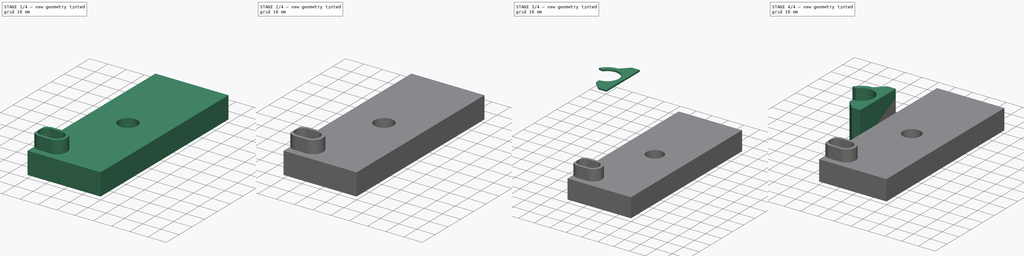
[diagram: build sequence overview — one tinted view per stage of 4, left to right]
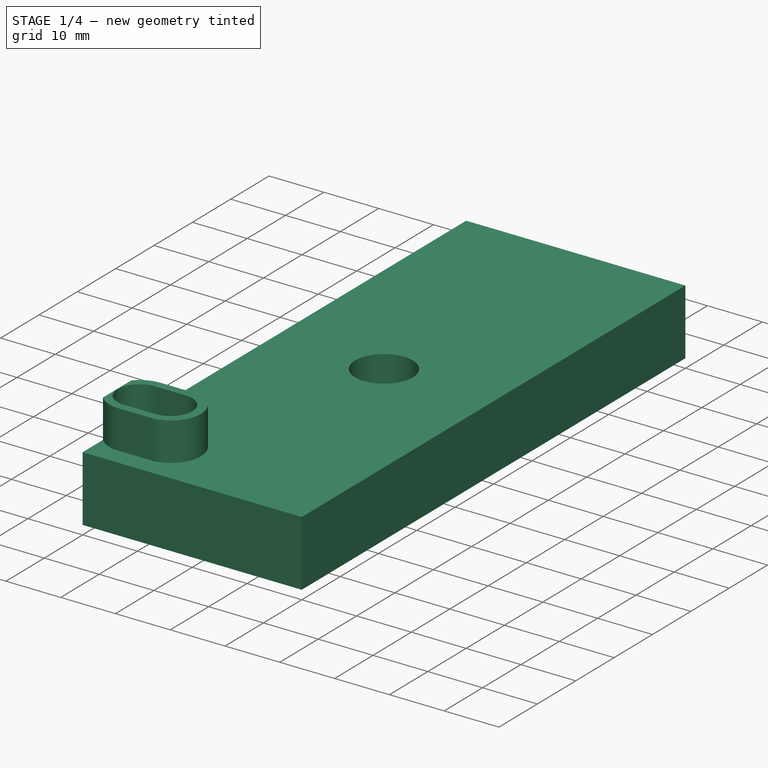
[diagram: stage 1 of 4 — iso view after this stage's code; geometry added in this stage tinted green]
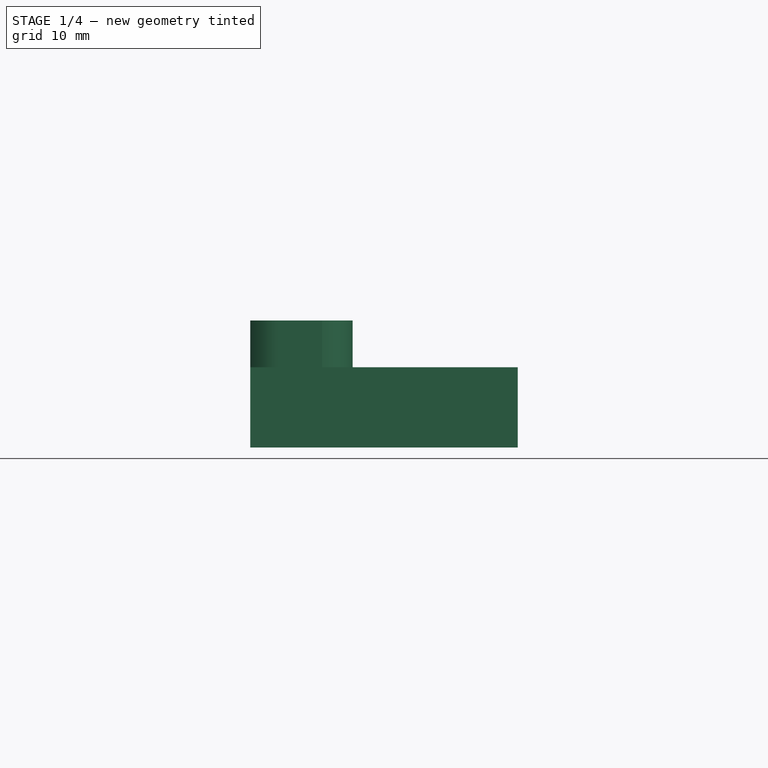
[diagram: stage 1 of 4 — front view after this stage's code; geometry added in this stage tinted green]
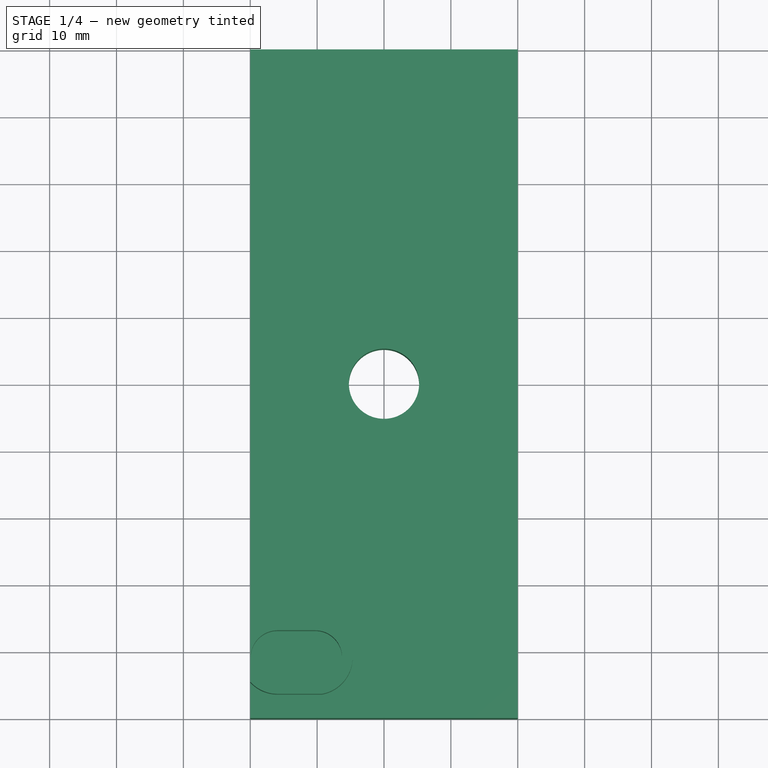
[diagram: stage 1 of 4 — top view after this stage's code; geometry added in this stage tinted green]
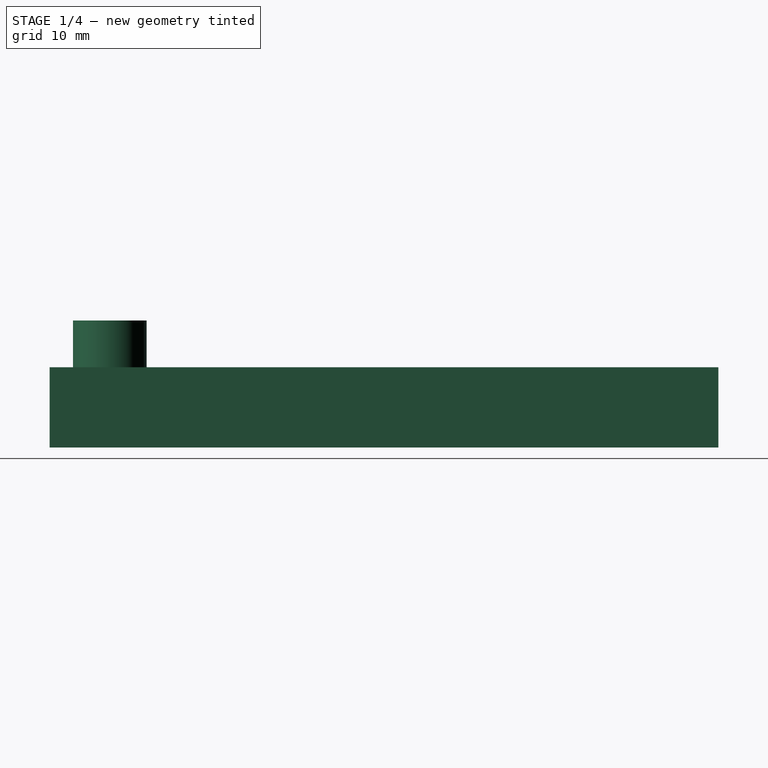
[diagram: stage 1 of 4 — right view after this stage's code; geometry added in this stage tinted green]
FCSTD DOCUMENT  (FreeCAD 0.15R4671 (Git))
Label: LShoulderV6
License: All rights reserved
LicenseURL: http://en.wikipedia.org/wiki/All_rights_reserved
objects: Sketcher::SketchObject×11, PartDesign::Pad×6, PartDesign::Pocket×5, Part::MultiFuse×1
note: 34 computed .brp shape members not serialized (recipe doc carries the construction recipe); baked Part::Feature solids carry a one-line shape summary decoded from their .brp

FEATURE [Sketcher::SketchObject] Sketch  label="Base001"
  sketch-geometry (7):
    g0: Circle CenterX=30 CenterY=0 CenterZ=0 NormalX=0 NormalY=0 NormalZ=1 Radius=5.25
    g1: LineSegment StartX=50 StartY=-50 StartZ=0 EndX=50 EndY=50 EndZ=0
    g2: LineSegment StartX=10 StartY=20 StartZ=0 EndX=10 EndY=50 EndZ=0
    g3: LineSegment StartX=10 StartY=50 StartZ=0 EndX=50 EndY=50 EndZ=0
    g4: LineSegment StartX=10 StartY=-13.3852 StartZ=0 EndX=10 EndY=-50 EndZ=0
    g5: LineSegment StartX=10 StartY=-50 StartZ=0 EndX=50 EndY=-50 EndZ=0
    g6: LineSegment StartX=10 StartY=-13.3852 StartZ=0 EndX=10 EndY=20 EndZ=0
  constraints (14):
    c: Radius(g0) = 5.25
    c: DistanceX(g-1,g0) = 30
    c: Vertical(g1)
    c: DistanceY(g1,g1) = -100
    c: Vertical(g2)
    c: Coincident(g3,g1)
    c: Horizontal(g3)
    c: Vertical(g4)
    c: Coincident(g5,g4)
    c: Coincident(g5,g1)
    c: Horizontal(g5)
    c: Vertical(g6)
    c: Coincident(g2,g6)
    c: Coincident(g6,g4)
FEATURE [PartDesign::Pad] Pad  label="Base"
  Length = 12
  Length2 = 100
  Sketch = -> Sketch
  Type = 0
FEATURE [Sketcher::SketchObject] Sketch016  label="Base009"
  sketch-geometry (7):
    g0: Circle CenterX=30 CenterY=0 CenterZ=0 NormalX=0 NormalY=0 NormalZ=1 Radius=5.25
    g1: LineSegment StartX=50 StartY=-50 StartZ=0 EndX=50 EndY=50 EndZ=0
    g2: LineSegment StartX=10 StartY=20 StartZ=0 EndX=10 EndY=50 EndZ=0
    g3: LineSegment StartX=10 StartY=50 StartZ=0 EndX=50 EndY=50 EndZ=0
    g4: LineSegment StartX=10 StartY=-13.3852 StartZ=0 EndX=10 EndY=-50 EndZ=0
    g5: LineSegment StartX=10 StartY=-50 StartZ=0 EndX=50 EndY=-50 EndZ=0
    g6: LineSegment StartX=10 StartY=-13.3852 StartZ=0 EndX=10 EndY=20 EndZ=0
  constraints (14):
    c: Radius(g0) = 5.25
    c: DistanceX(g-1,g0) = 30
    c: Vertical(g1)
    c: DistanceY(g1,g1) = -100
    c: Vertical(g2)
    c: Coincident(g3,g1)
    c: Horizontal(g3)
    c: Vertical(g4)
    c: Coincident(g5,g4)
    c: Coincident(g5,g1)
    c: Horizontal(g5)
    c: Vertical(g6)
    c: Coincident(g2,g6)
    c: Coincident(g6,g4)
FEATURE [PartDesign::Pad] Pad004  label="Base010"
  Length = 12
  Length2 = 100
  Sketch = -> Sketch016
  Type = 0
FEATURE [Sketcher::SketchObject] Sketch022
  Placement = pos=(0,0,12) rot=(0,0,1;0rad)
  sketch-geometry (10):
    g0: ArcOfCircle CenterX=19.728 CenterY=-41 CenterZ=0 NormalX=0 NormalY=0 NormalZ=1 Radius=4 StartAngle=4.71239 EndAngle=7.85398
    g1: ArcOfCircle CenterX=14.078 CenterY=-41 CenterZ=0 NormalX=0 NormalY=0 NormalZ=1 Radius=4 StartAngle=1.5708 EndAngle=4.71239
    g2: LineSegment StartX=14.078 StartY=-37 StartZ=0 EndX=19.728 EndY=-37 EndZ=0
    g3: LineSegment StartX=19.728 StartY=-45 StartZ=0 EndX=14.078 EndY=-45 EndZ=0
    g4: ArcOfCircle CenterX=19.728 CenterY=-41 CenterZ=0 NormalX=0 NormalY=0 NormalZ=1 Radius=5.58914 StartAngle=4.89122 EndAngle=7.67515
    g5: ArcOfCircle CenterX=14.078 CenterY=-41 CenterZ=0 NormalX=0 NormalY=0 NormalZ=1 Radius=5.5 StartAngle=1.5708 EndAngle=2.40604
    g6: ArcOfCircle CenterX=14.078 CenterY=-41 CenterZ=0 NormalX=0 NormalY=0 NormalZ=1 Radius=5.5 StartAngle=3.87715 EndAngle=4.71239
    g7: LineSegment StartX=20.7222 StartY=-35.5 StartZ=0 EndX=14.078 EndY=-35.5 EndZ=0
    g8: LineSegment StartX=20.7222 StartY=-46.5 StartZ=0 EndX=14.078 EndY=-46.5 EndZ=0
    g9: LineSegment StartX=10 StartY=-37.3095 StartZ=0 EndX=10 EndY=-44.6905 EndZ=0
  constraints (30):
    c: Coincident(g2,g1)
    c: Coincident(g2,g0)
    c: Coincident(g3,g0)
    c: Coincident(g3,g1)
    c: Tangent(g1,g3)
    c: Tangent(g2,g1)
    c: Tangent(g0,g2)
    c: Tangent(g0,g3)
    c: Horizontal(g2)
    c: Horizontal(g3)
    c: DistanceY(g-1,g1) = -41
    c: DistanceX(g1,g0) = 5.65
    c: Radius(g1) = 4
    c: DistanceY(g4,g4) = 11
    c: Coincident(g7,g4)
    c: Coincident(g7,g5)
    c: Horizontal(g7)
    c: Coincident(g8,g4)
    c: Coincident(g8,g6)
    c: Horizontal(g8)
    c: Coincident(g9,g5)
    c: Vertical(g9)
    c: Coincident(g6,g9)
    c: DistanceX(g-1,g6) = 10
    c: DistanceX(g4,g4) = 0
    c: Tangent(g7,g5)
    c: Tangent(g8,g6)
    c: Coincident(g4,g0)
    c: Coincident(g6,g1)
    c: Coincident(g5,g1)
FEATURE [PartDesign::Pad] Pad006
  Length = 7
  Length2 = 100
  Placement = pos=(0,0,12) rot=(0,0,1;0rad)
  Sketch = -> Sketch022
  Type = 0
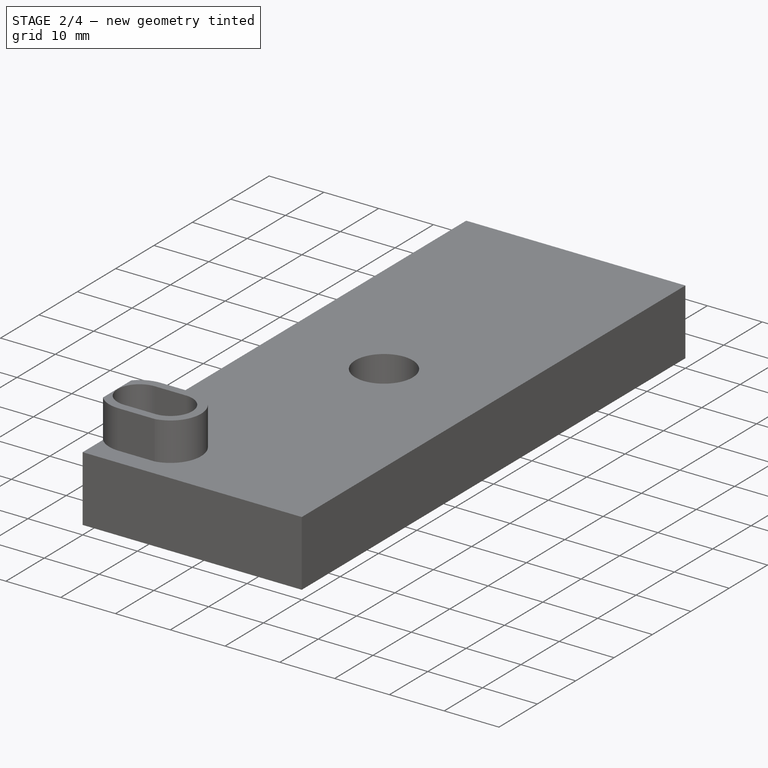
[diagram: stage 2 of 4 — iso view after this stage's code; geometry added in this stage tinted green]
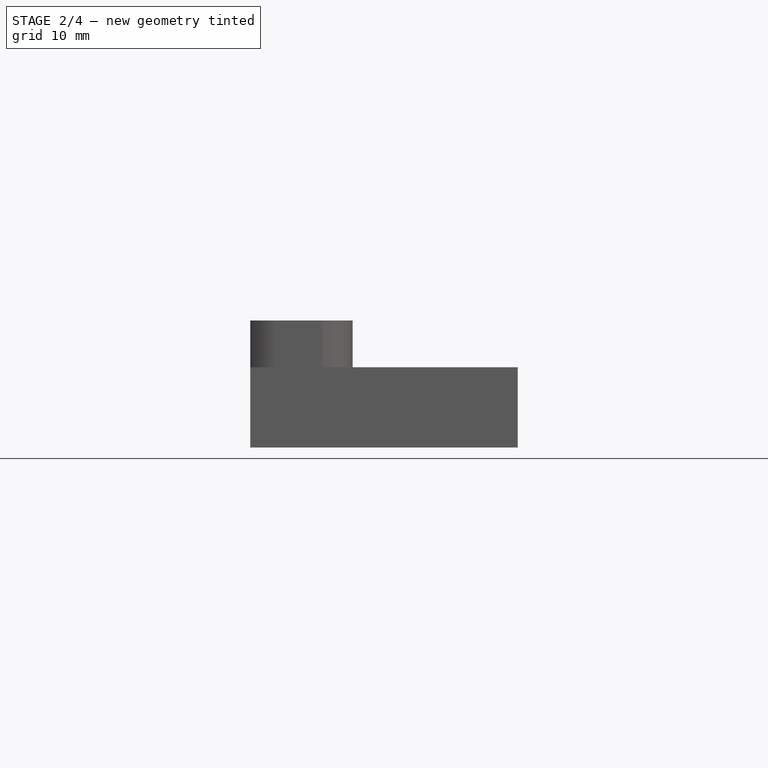
[diagram: stage 2 of 4 — front view after this stage's code; geometry added in this stage tinted green]
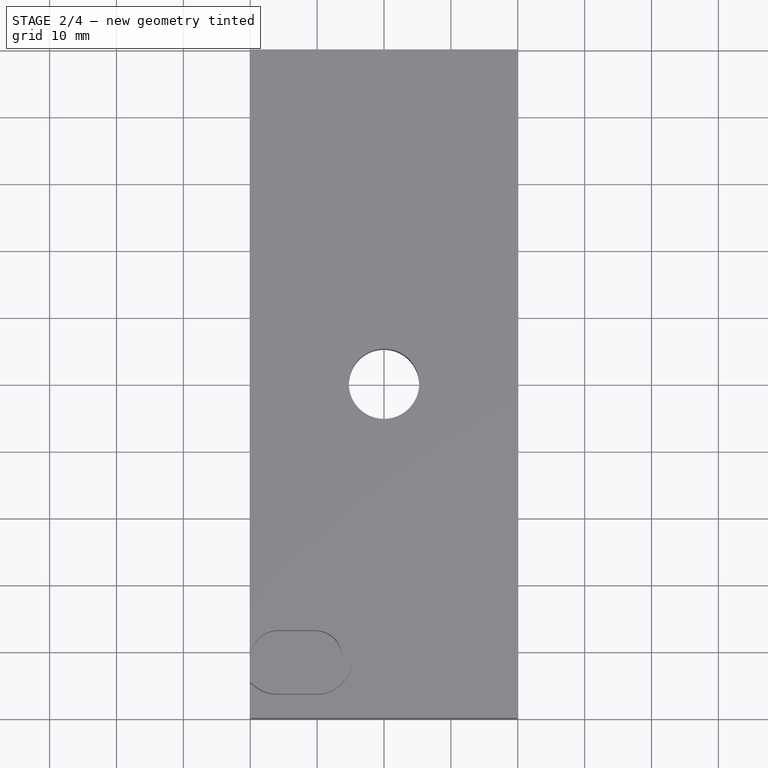
[diagram: stage 2 of 4 — top view after this stage's code; geometry added in this stage tinted green]
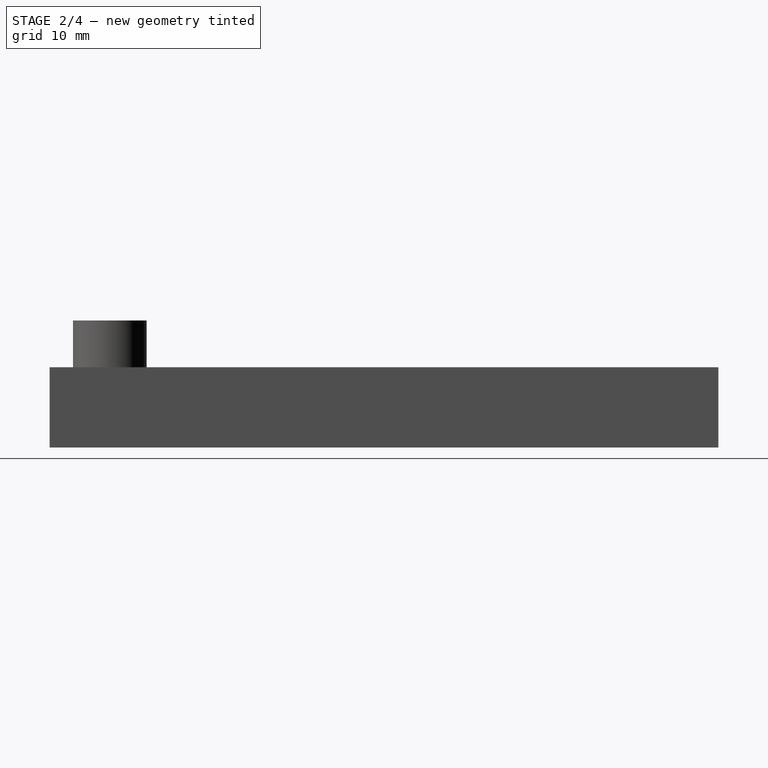
[diagram: stage 2 of 4 — right view after this stage's code; geometry added in this stage tinted green]
FEATURE [Sketcher::SketchObject] Sketch005  label="NutScrewHoles001"
  Placement = pos=(0,0,12) rot=(0,0,1;0rad)
  Support = -> Pad [Face9]
  sketch-geometry (4):
    g0: Circle CenterX=29.9972 CenterY=8.25 CenterZ=0 NormalX=0 NormalY=0 NormalZ=1 Radius=1
    g1: Circle CenterX=21.7472 CenterY=0 CenterZ=0 NormalX=0 NormalY=0 NormalZ=1 Radius=1
    g2: Circle CenterX=38.2471 CenterY=0 CenterZ=0 NormalX=0 NormalY=0 NormalZ=1 Radius=1
    g3: Circle CenterX=29.9972 CenterY=-8.25 CenterZ=0 NormalX=0 NormalY=0 NormalZ=1 Radius=1
  constraints (11):
    c: PointOnObject(g1,g-1)
    c: Radius(g3) = 1
    c: Equal(g3,g2)
    c: Equal(g3,g0)
    c: Equal(g3,g1)
    c: PointOnObject(g2,g-1)
    c: DistanceX(g3,g0) = 0
    c: DistanceY(g3,g0) = 16.5
    c: DistanceX(g1,g2) = 16.5
    c: DistanceY(g0,g2) = -8.25
    c: DistanceX(g2,g0) = -8.25
FEATURE [PartDesign::Pocket] Pocket
  Length = 15
  Sketch = -> Sketch005
  Type = 0
FEATURE [Sketcher::SketchObject] Sketch001  label="HorizontalRods"
  Placement = pos=(50,0,0) rot=(0.57735,0.57735,0.57735;2.0944rad)
  Support = -> Pocket [Face7]
  sketch-geometry (8):
    g0: LineSegment StartX=-33.5116 StartY=1.26626 StartZ=0 EndX=-33.5116 EndY=0 EndZ=0
    g1: LineSegment StartX=-33.5116 StartY=0 StartZ=0 EndX=-36.5116 EndY=0 EndZ=0
    g2: LineSegment StartX=-36.5116 StartY=0 StartZ=0 EndX=-36.5116 EndY=1.27538 EndZ=0
    g3: LineSegment StartX=36.5 StartY=1.18424 StartZ=0 EndX=36.5 EndY=0 EndZ=0
    g4: LineSegment StartX=36.5 StartY=0 StartZ=0 EndX=33.5 EndY=0 EndZ=0
    g5: LineSegment StartX=33.5 StartY=0 StartZ=0 EndX=33.5 EndY=1.18424 EndZ=0
    g6: ArcOfCircle CenterX=35 CenterY=5 CenterZ=0 NormalX=0 NormalY=0 NormalZ=1 Radius=4.1 StartAngle=5.08694 EndAngle=10.621
    g7: ArcOfCircle CenterX=-35 CenterY=5.08655 CenterZ=0 NormalX=0 NormalY=0 NormalZ=1 Radius=4.1 StartAngle=5.0839 EndAngle=10.618
  constraints (18):
    c: Coincident(g0,g1)
    c: Coincident(g1,g2)
    c: Horizontal(g1)
    c: Vertical(g0)
    c: Vertical(g2)
    c: DistanceX(g0,g2) = -3
    c: Coincident(g3,g4)
    c: Coincident(g4,g5)
    c: Horizontal(g4)
    c: Vertical(g3)
    c: Vertical(g5)
    c: DistanceX(g5,g3) = 3
    c: Coincident(g6,g3)
    c: Coincident(g6,g5)
    c: Coincident(g7,g0)
    c: Coincident(g7,g2)
    c: Radius(g7) = 4.1
    c: Radius(g6) = 4.1
FEATURE [PartDesign::Pocket] Pocket001
  Length = 25
  Sketch = -> Sketch001
  Type = 0
FEATURE [PartDesign::Pocket] Pocket002
  Length = 5
  Sketch = -> Sketch012
  Type = 0
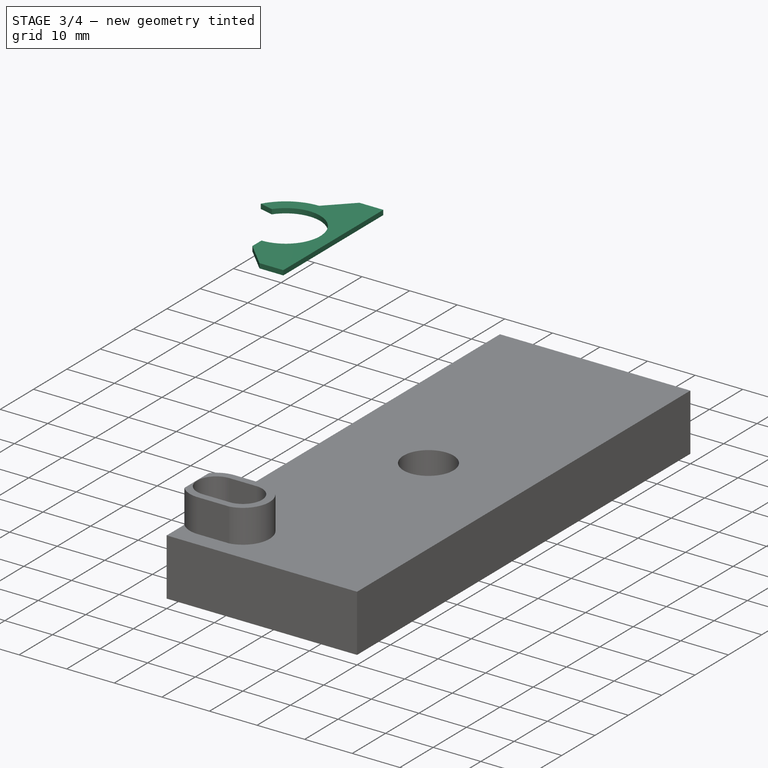
[diagram: stage 3 of 4 — iso view after this stage's code; geometry added in this stage tinted green]
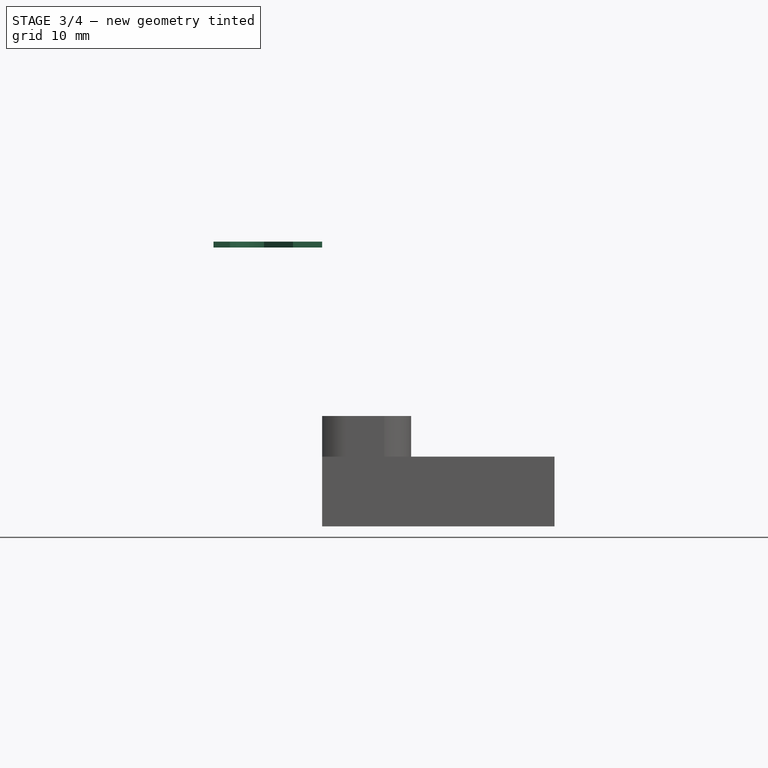
[diagram: stage 3 of 4 — front view after this stage's code; geometry added in this stage tinted green]
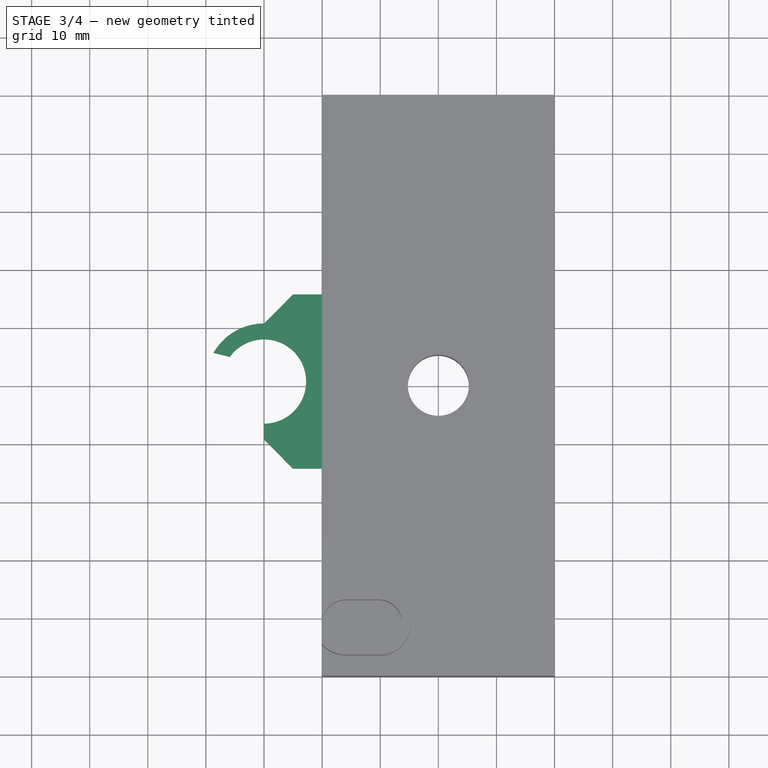
[diagram: stage 3 of 4 — top view after this stage's code; geometry added in this stage tinted green]
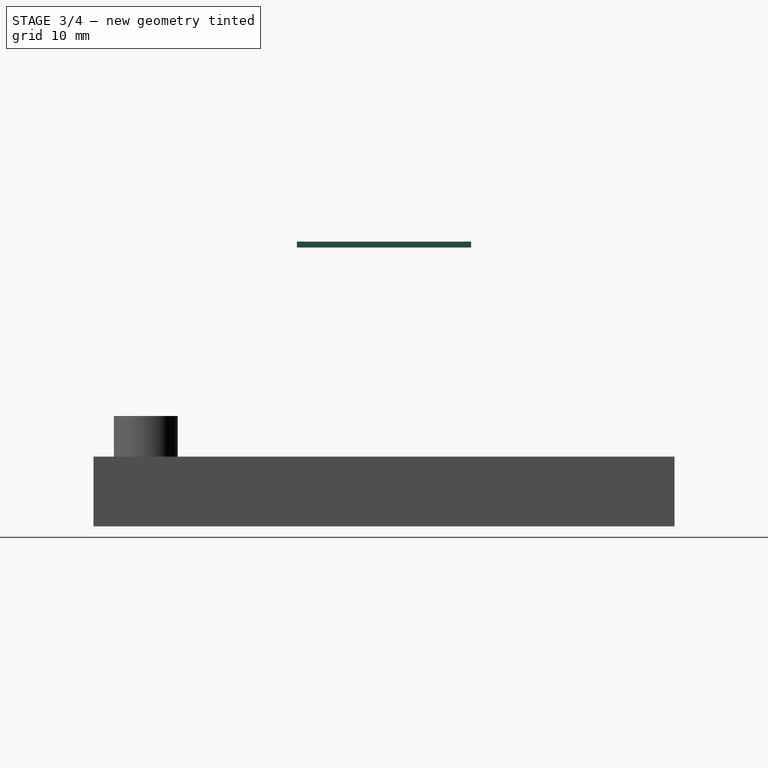
[diagram: stage 3 of 4 — right view after this stage's code; geometry added in this stage tinted green]
FEATURE [PartDesign::Pad] Pad003
  Length = 1
  Length2 = 100
  Placement = pos=(0,0,48) rot=(0,0,1;0rad)
  Sketch = -> Sketch015
  Type = 0
FEATURE [Sketcher::SketchObject] Sketch011  label="Pulley001"
  Placement = pos=(0,0,12) rot=(0,0,1;0rad)
  Support = -> Pocket002 [Face8]
  sketch-geometry (4):
    g0: LineSegment StartX=14.4154 StartY=-44.9825 StartZ=0 EndX=20.1963 EndY=-44.9825 EndZ=0
    g1: LineSegment StartX=14.0494 StartY=-37 StartZ=0 EndX=20.2124 EndY=-37 EndZ=0
    g2: ArcOfCircle CenterX=14.0416 CenterY=-41 CenterZ=0 NormalX=0 NormalY=0 NormalZ=1 Radius=4 StartAngle=1.56885 EndAngle=4.80596
    g3: ArcOfCircle CenterX=19.94 CenterY=-40.9907 CenterZ=0 NormalX=0 NormalY=0 NormalZ=1 Radius=4 StartAngle=4.77651 EndAngle=7.78583
  constraints (9):
    c: Horizontal(g1)
    c: Coincident(g3,g0)
    c: Coincident(g3,g1)
    c: Coincident(g1,g2)
    c: Coincident(g0,g2)
    c: Equal(g3,g2)
    c: Radius(g3) = 4
    c: DistanceY(g-1,g2) = -41
    c: Horizontal(g0)
FEATURE [PartDesign::Pocket] Pocket003
  Length = 12
  Sketch = -> Sketch011
  Type = 0
FEATURE [Sketcher::SketchObject] Sketch010
  Placement = pos=(0,0,12) rot=(0,0,1;0rad)
  Support = -> Pocket003 [Face8]
  sketch-geometry (2):
    g0: Circle CenterX=43 CenterY=19.1111 CenterZ=0 NormalX=0 NormalY=0 NormalZ=1 Radius=1.1
    g1: Circle CenterX=43 CenterY=10.1111 CenterZ=0 NormalX=0 NormalY=0 NormalZ=1 Radius=1.1
  constraints (5):
    c: Radius(g1) = 1.1
    c: Equal(g1,g0)
    c: DistanceY(g0,g1) = -9
    c: DistanceX(g0,g1) = 0
    c: DistanceX(g-1,g0) = 43
FEATURE [PartDesign::Pocket] Pocket004
  Length = 12
  Sketch = -> Sketch010
  Type = 0
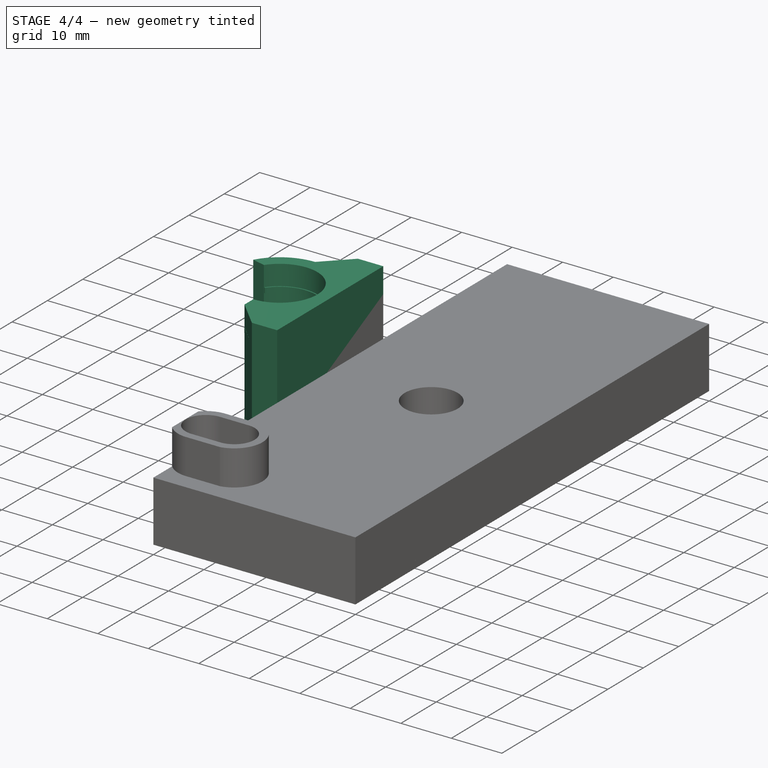
[diagram: stage 4 of 4 — iso view after this stage's code; geometry added in this stage tinted green]
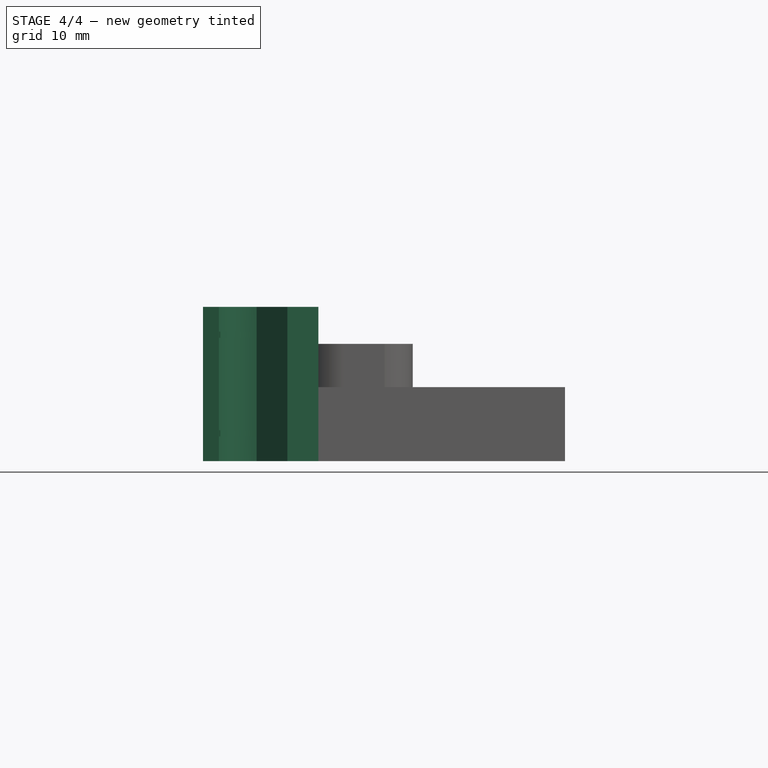
[diagram: stage 4 of 4 — front view after this stage's code; geometry added in this stage tinted green]
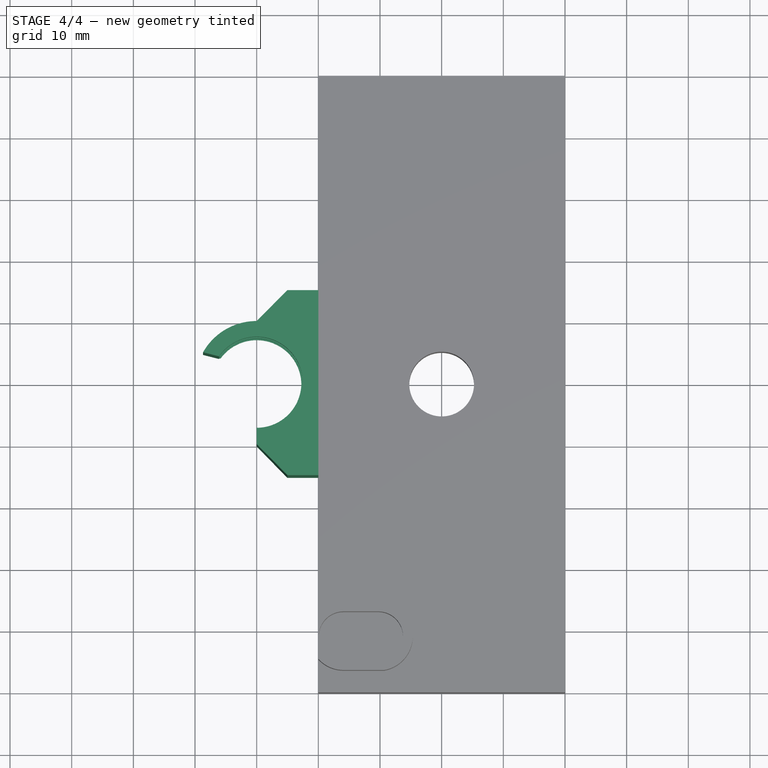
[diagram: stage 4 of 4 — top view after this stage's code; geometry added in this stage tinted green]
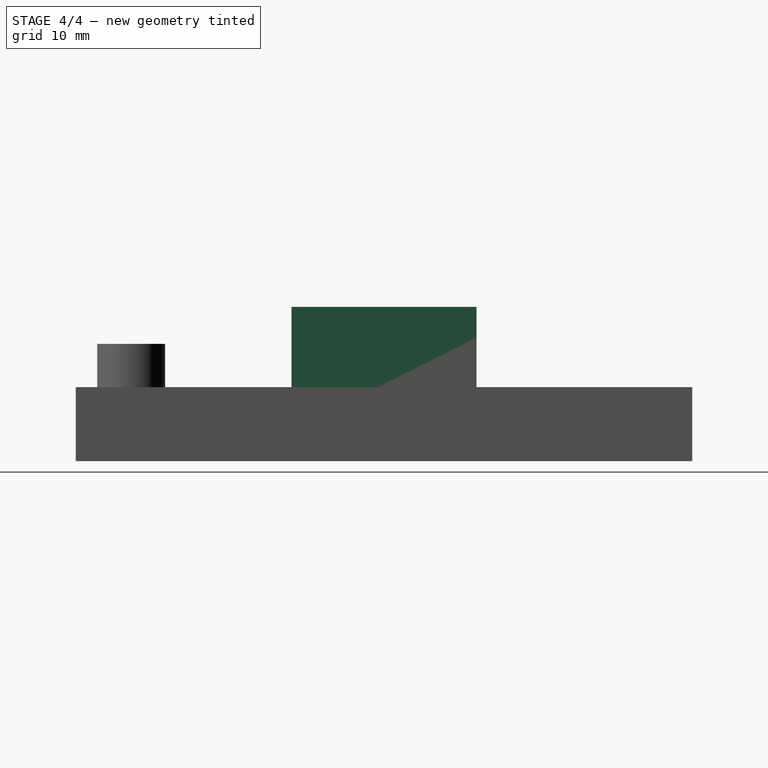
[diagram: stage 4 of 4 — right view after this stage's code; geometry added in this stage tinted green]
FEATURE [Sketcher::SketchObject] Sketch012  label="PulleyNut001"
  Placement = pos=(0,0,0) rot=(1,0,0;3.14159rad)
  Support = -> Pocket001 [Face4]
  sketch-geometry (4):
    g0: LineSegment StartX=9.98206 StartY=47.75 StartZ=0 EndX=27.0062 EndY=47.75 EndZ=0
    g1: LineSegment StartX=27.0062 StartY=47.75 StartZ=0 EndX=27.0062 EndY=34.25 EndZ=0
    g2: LineSegment StartX=27.0062 StartY=34.25 StartZ=0 EndX=9.98206 EndY=34.25 EndZ=0
    g3: LineSegment StartX=9.98206 StartY=34.25 StartZ=0 EndX=9.98206 EndY=47.75 EndZ=0
  constraints (10):
    c: Coincident(g0,g1)
    c: Coincident(g1,g2)
    c: Coincident(g2,g3)
    c: Coincident(g3,g0)
    c: Horizontal(g0)
    c: Horizontal(g2)
    c: Vertical(g1)
    c: Vertical(g3)
    c: DistanceY(g0,g1) = -13.5
    c: DistanceY(g-1,g2) = 34.25
FEATURE [Sketcher::SketchObject] Sketch013  label="Base004"
  Placement = pos=(0,0,28) rot=(0,0,1;0rad)
  sketch-geometry (9):
    g0: LineSegment StartX=-6.12405 StartY=4.27437 StartZ=0 EndX=-8.70018 EndY=4.9302 EndZ=0
    g1: ArcOfCircle CenterX=0 CenterY=0 CenterZ=0 NormalX=0 NormalY=0 NormalZ=1 Radius=10 StartAngle=1.5708 EndAngle=2.62603
    g2: LineSegment StartX=4.98503 StartY=-15 StartZ=0 EndX=10 EndY=-15 EndZ=0
    g3: LineSegment StartX=10 StartY=-15 StartZ=0 EndX=10 EndY=15 EndZ=0
    g4: LineSegment StartX=10 StartY=15 StartZ=0 EndX=4.98503 EndY=15 EndZ=0
    g5: LineSegment StartX=-1e-12 StartY=10 StartZ=0 EndX=4.98503 EndY=15 EndZ=0
    g6: LineSegment StartX=0 StartY=-9.95278 StartZ=0 EndX=4.98503 EndY=-15 EndZ=0
    g7: ArcOfCircle CenterX=0 CenterY=0 CenterZ=0 NormalX=0 NormalY=0 NormalZ=1 Radius=7.46821 StartAngle=4.71239 EndAngle=8.81542
    g8: LineSegment StartX=0 StartY=-7.46821 StartZ=0 EndX=0 EndY=-9.95278 EndZ=0
  constraints (21):
    c: PointOnObject(g1,g-2)
    c: PointOnObject(g6,g-2)
    c: Coincident(g1,g-1)
    c: Coincident(g1,g0)
    c: Horizontal(g2)
    c: Coincident(g3,g2)
    c: Vertical(g3)
    c: Coincident(g4,g3)
    c: Horizontal(g4)
    c: DistanceY(g3,g2) = -30
    c: DistanceY(g-1,g3) = 15
    c: Coincident(g5,g1)
    c: Coincident(g5,g4)
    c: Coincident(g6,g2)
    c: DistanceX(g-1,g2) = 4.98503
    c: DistanceX(g4,g2) = 0
    c: Coincident(g7,g-1)
    c: Coincident(g7,g0)
    c: Coincident(g8,g7)
    c: Coincident(g8,g6)
    c: Vertical(g8)
FEATURE [PartDesign::Pad] Pad001
  Length = 25
  Length2 = 100
  Placement = pos=(0,0,28) rot=(0,0,1;0rad)
  Sketch = -> Sketch013
  Type = 0
FEATURE [Sketcher::SketchObject] Sketch014  label="Base007"
  Placement = pos=(0,0,32) rot=(0,0,1;0rad)
  sketch-geometry (9):
    g0: LineSegment StartX=-5.8767 StartY=4.24581 StartZ=0 EndX=-8.70018 EndY=4.9302 EndZ=0
    g1: ArcOfCircle CenterX=0 CenterY=0 CenterZ=0 NormalX=0 NormalY=0 NormalZ=1 Radius=10 StartAngle=1.5708 EndAngle=2.62603
    g2: LineSegment StartX=4.98503 StartY=-15 StartZ=0 EndX=10 EndY=-15 EndZ=0
    g3: LineSegment StartX=10 StartY=-15 StartZ=0 EndX=10 EndY=15 EndZ=0
    g4: LineSegment StartX=10 StartY=15 StartZ=0 EndX=4.98503 EndY=15 EndZ=0
    g5: LineSegment StartX=-1e-12 StartY=10 StartZ=0 EndX=4.98503 EndY=15 EndZ=0
    g6: LineSegment StartX=0 StartY=-10 StartZ=0 EndX=4.98503 EndY=-15 EndZ=0
    g7: ArcOfCircle CenterX=0 CenterY=0 CenterZ=0 NormalX=0 NormalY=0 NormalZ=1 Radius=7.25 StartAngle=4.71239 EndAngle=8.79912
    g8: LineSegment StartX=0 StartY=-7.25 StartZ=0 EndX=0 EndY=-10 EndZ=0
  constraints (21):
    c: PointOnObject(g1,g-2)
    c: PointOnObject(g6,g-2)
    c: Coincident(g1,g-1)
    c: Coincident(g1,g0)
    c: Horizontal(g2)
    c: Coincident(g3,g2)
    c: Vertical(g3)
    c: Coincident(g4,g3)
    c: Horizontal(g4)
    c: DistanceY(g3,g2) = -30
    c: DistanceY(g-1,g3) = 15
    c: Coincident(g5,g1)
    c: Coincident(g5,g4)
    c: Coincident(g6,g2)
    c: DistanceX(g-1,g2) = 4.98503
    c: DistanceX(g2,g4) = 0
    c: Coincident(g7,g-1)
    c: Coincident(g7,g0)
    c: Coincident(g8,g7)
    c: Coincident(g8,g6)
    c: Vertical(g8)
FEATURE [Sketcher::SketchObject] Sketch015  label="Base008"
  Placement = pos=(0,0,48) rot=(0,0,1;0rad)
  sketch-geometry (9):
    g0: LineSegment StartX=-5.8767 StartY=4.24581 StartZ=0 EndX=-8.70018 EndY=4.9302 EndZ=0
    g1: ArcOfCircle CenterX=0 CenterY=0 CenterZ=0 NormalX=0 NormalY=0 NormalZ=1 Radius=10 StartAngle=1.5708 EndAngle=2.62603
    g2: LineSegment StartX=4.98503 StartY=-15 StartZ=0 EndX=10 EndY=-15 EndZ=0
    g3: LineSegment StartX=10 StartY=-15 StartZ=0 EndX=10 EndY=15 EndZ=0
    g4: LineSegment StartX=10 StartY=15 StartZ=0 EndX=4.98503 EndY=15 EndZ=0
    g5: LineSegment StartX=-1e-12 StartY=10 StartZ=0 EndX=4.98503 EndY=15 EndZ=0
    g6: LineSegment StartX=0 StartY=-10 StartZ=0 EndX=4.98503 EndY=-15 EndZ=0
    g7: ArcOfCircle CenterX=0 CenterY=0 CenterZ=0 NormalX=0 NormalY=0 NormalZ=1 Radius=7.25 StartAngle=4.71239 EndAngle=8.79912
    g8: LineSegment StartX=0 StartY=-7.25 StartZ=0 EndX=0 EndY=-10 EndZ=0
  constraints (21):
    c: PointOnObject(g1,g-2)
    c: PointOnObject(g6,g-2)
    c: Coincident(g1,g-1)
    c: Coincident(g1,g0)
    c: Horizontal(g2)
    c: Coincident(g3,g2)
    c: Vertical(g3)
    c: Coincident(g4,g3)
    c: Horizontal(g4)
    c: DistanceY(g3,g2) = -30
    c: DistanceY(g-1,g3) = 15
    c: Coincident(g5,g1)
    c: Coincident(g5,g4)
    c: Coincident(g6,g2)
    c: DistanceX(g-1,g2) = 4.98503
    c: DistanceX(g2,g4) = 0
    c: Coincident(g7,g-1)
    c: Coincident(g7,g0)
    c: Coincident(g8,g7)
    c: Coincident(g8,g6)
    c: Vertical(g8)
FEATURE [PartDesign::Pad] Pad002
  Length = 1
  Length2 = 100
  Placement = pos=(0,0,32) rot=(0,0,1;0rad)
  Sketch = -> Sketch014
  Type = 0
FEATURE [Part::MultiFuse] Fusion  label="BearingLodge"
  Placement = pos=(0,0,-28) rot=(0,0,1;0rad)
  Shapes = -> [Pad001,Pad002,Pad003]
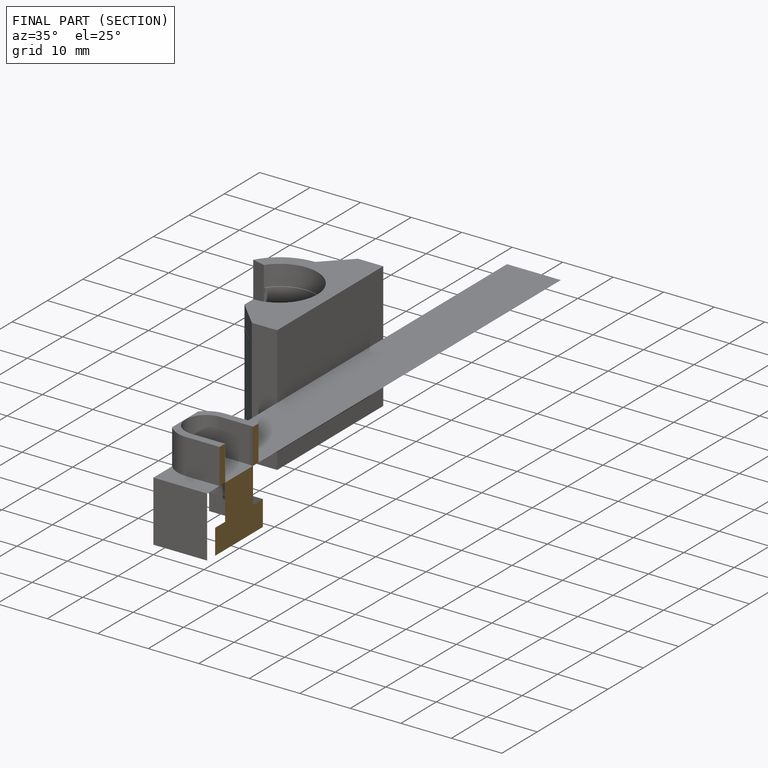
[diagram: finished part — half-section view (interior)]
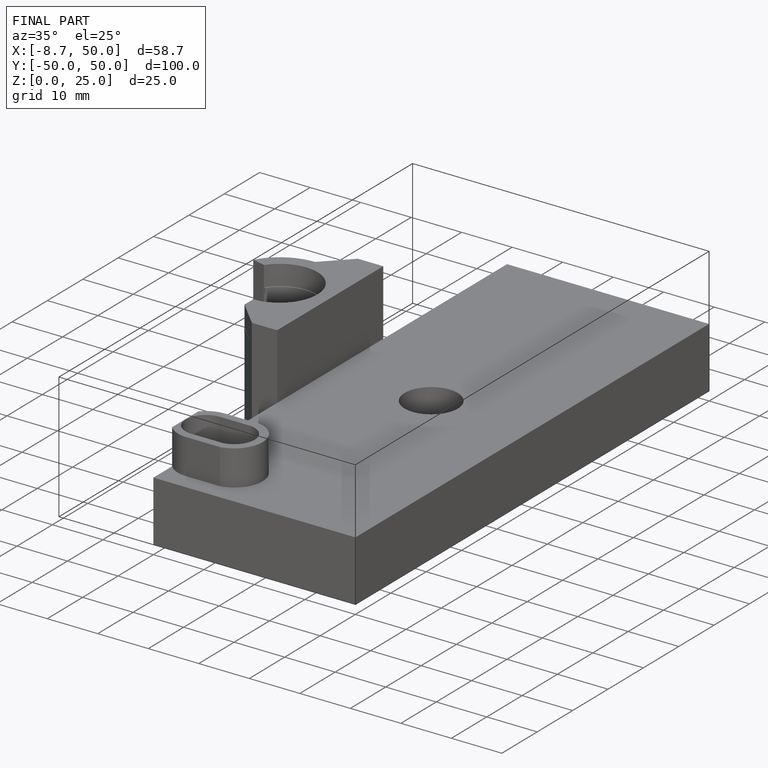
[diagram: finished part — iso view with bounding-box wireframe]
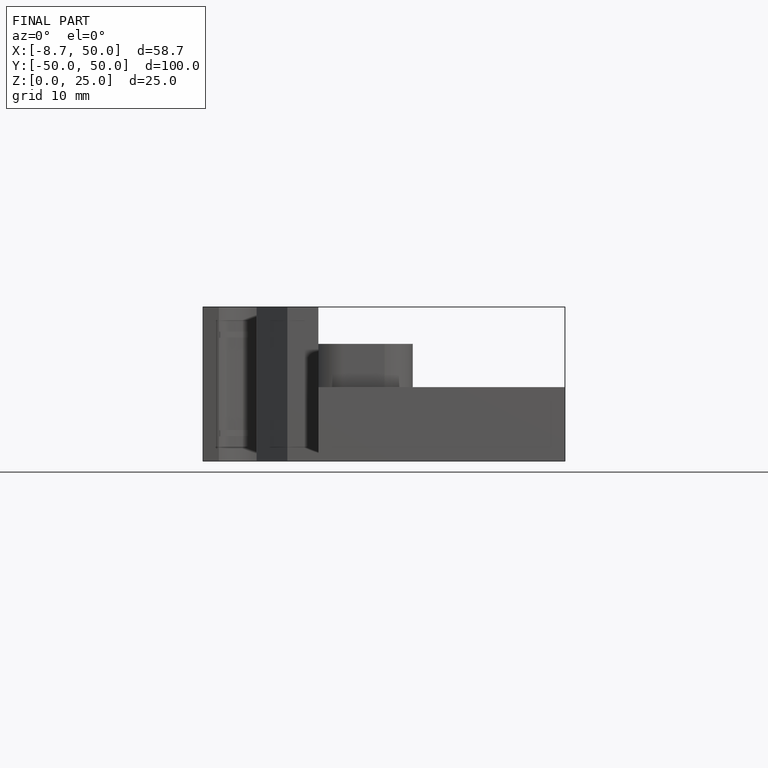
[diagram: finished part — front view with bounding-box wireframe]
